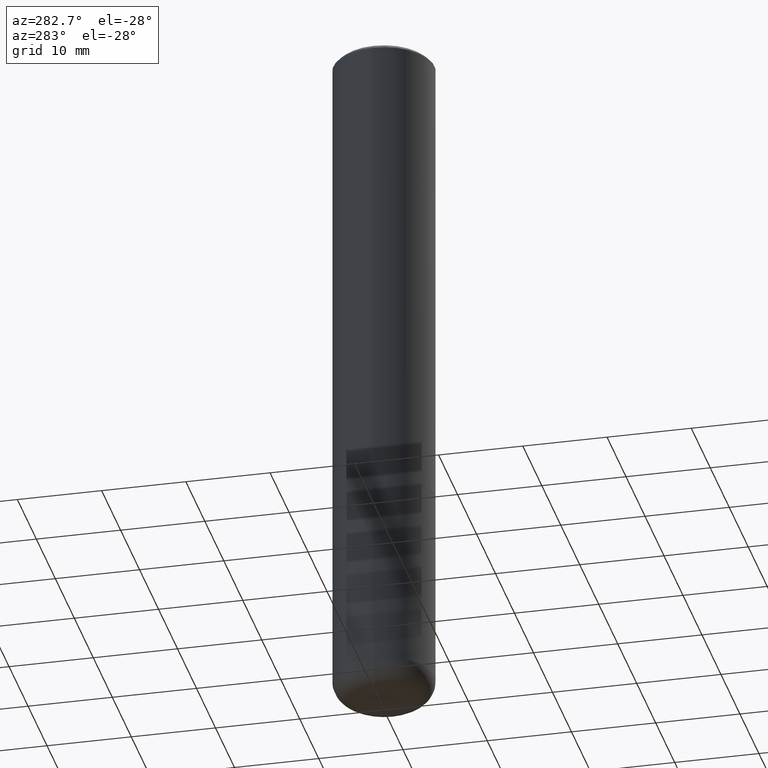
[diagram: clean part render]
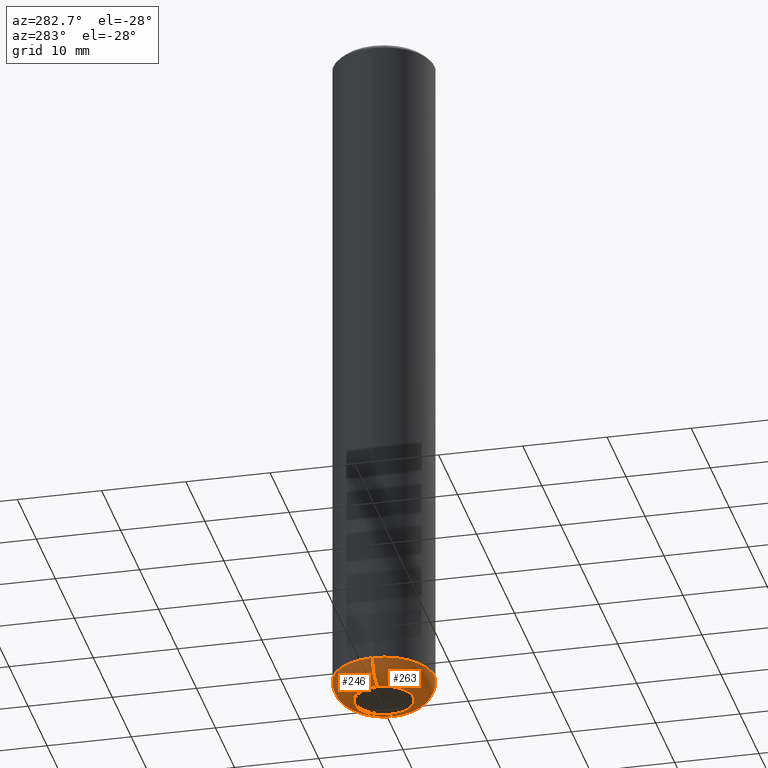
[diagram: same view with one multi-face feature highlighted, each face labeled with its STEP entity id]
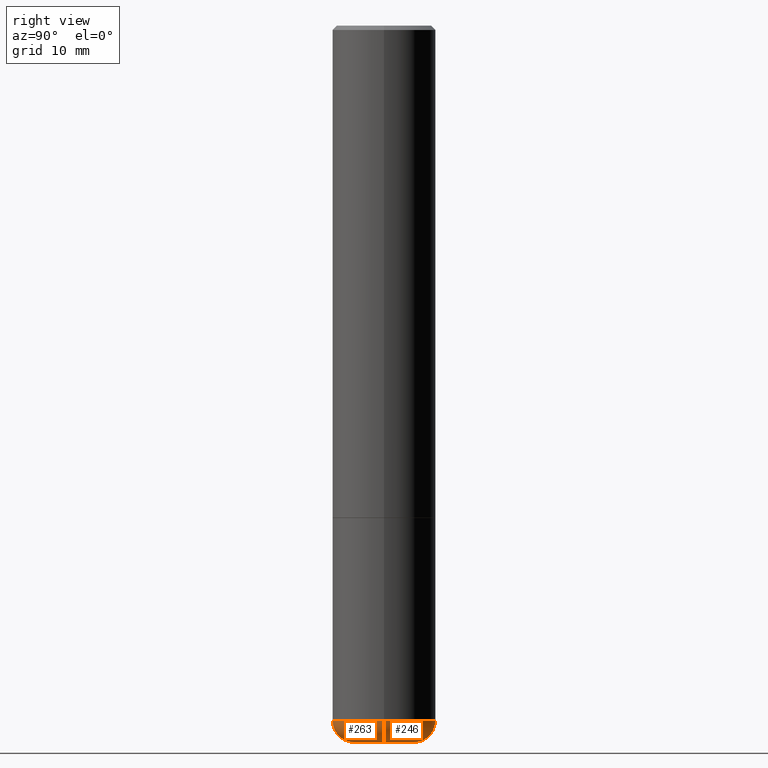
[diagram: same view with one multi-face feature highlighted, each face labeled with its STEP entity id]
A machine part, auxiliary view. The highlighted faces form ONE feature: a constant-radius fillet chain: 2 tangent blend faces with common blend radius 2.4994 mm. The faces share edges in the B-rep.
A second angle (right view) of the same feature is appended — it is thin or edge-on in the first view.
Their STEP definitions:
[1] entity #263 (Torus):
#5 = DIRECTION ( 'NONE',  ( -1.000000000000000000, 7.105427357601009747E-15, 0.000000000000000000 ) ) ;
#10 = AXIS2_PLACEMENT_3D ( 'NONE', #132, #353, #321 ) ;
#20 = VERTEX_POINT ( 'NONE', #84 ) ;
#41 = EDGE_CURVE ( 'NONE', #370, #20, #268, .T. ) ;
#42 = CARTESIAN_POINT ( 'NONE',  ( -0.1378000000000000058, -9.908617773195273284E-15, -3.267700000000000937 ) ) ;
#54 = CARTESIAN_POINT ( 'NONE',  ( 7.991058417971172834E-29, -1.140911357093774960E-14, -3.267700000000000937 ) ) ;
#62 = DIRECTION ( 'NONE',  ( 7.105427357601001859E-15, 1.000000000000000000, -3.491481338843145583E-15 ) ) ;
#71 = DIRECTION ( 'NONE',  ( 1.000000000000000000, -6.982962677686264344E-15, 0.000000000000000000 ) ) ;
#72 = AXIS2_PLACEMENT_3D ( 'NONE', #355, #300, #302 ) ;
#76 = VERTEX_POINT ( 'NONE', #99 ) ;
#84 = CARTESIAN_POINT ( 'NONE',  ( 0.1378000000000000058, -1.237136582792291707E-14, -3.267700000000000937 ) ) ;
#91 = CIRCLE ( 'NONE', #10, 0.09840000000000040381 ) ;
#95 = AXIS2_PLACEMENT_3D ( 'NONE', #54, #100, #113 ) ;
#99 = CARTESIAN_POINT ( 'NONE',  ( 0.2362000000000002153, -1.271492759166507844E-14, -3.169299999999999784 ) ) ;
#100 = DIRECTION ( 'NONE',  ( -2.445468806185136597E-29, 3.491481338843145583E-15, 1.000000000000000000 ) ) ;
#113 = DIRECTION ( 'NONE',  ( 1.000000000000000000, -6.982962677686265922E-15, 0.000000000000000000 ) ) ;
#132 = CARTESIAN_POINT ( 'NONE',  ( 0.1378000000000000058, -1.202780406418074782E-14, -3.169299999999999784 ) ) ;
#142 = FACE_OUTER_BOUND ( 'NONE', #245, .T. ) ;
#161 = TOROIDAL_SURFACE ( 'NONE', #72, 0.1378000000000000058, 0.09840000000000040381 ) ;
#185 = EDGE_CURVE ( 'NONE', #20, #76, #91, .T. ) ;
#187 = EDGE_CURVE ( 'NONE', #370, #248, #323, .T. ) ;
#208 = DIRECTION ( 'NONE',  ( -2.445468806185136597E-29, 3.491481338843145583E-15, 1.000000000000000000 ) ) ;
#241 = CARTESIAN_POINT ( 'NONE',  ( 7.750424287442554569E-29, -1.106555180719558034E-14, -3.169299999999999784 ) ) ;
#243 = ORIENTED_EDGE ( 'NONE', *, *, #187, .F. ) ;
#245 = EDGE_LOOP ( 'NONE', ( #243, #267, #305, #303 ) ) ;
#248 = VERTEX_POINT ( 'NONE', #329 ) ;
#253 = EDGE_CURVE ( 'NONE', #248, #76, #345, .T. ) ;
#260 = CARTESIAN_POINT ( 'NONE',  ( -0.1378000000000000058, -1.008642391731816283E-14, -3.169299999999999784 ) ) ;
#263 = ADVANCED_FACE ( 'NONE', ( #142 ), #161, .T. ) ;
#267 = ORIENTED_EDGE ( 'NONE', *, *, #41, .T. ) ;
#268 = CIRCLE ( 'NONE', #95, 0.1378000000000000058 ) ;
#300 = DIRECTION ( 'NONE',  ( -2.445468806185136597E-29, 3.491481338843145583E-15, 1.000000000000000000 ) ) ;
#302 = DIRECTION ( 'NONE',  ( 1.000000000000000000, -6.982962677686269077E-15, 4.883557194083113462E-29 ) ) ;
#303 = ORIENTED_EDGE ( 'NONE', *, *, #253, .F. ) ;
#305 = ORIENTED_EDGE ( 'NONE', *, *, #185, .T. ) ;
#321 = DIRECTION ( 'NONE',  ( 1.000000000000000000, -6.982962677686272233E-15, 0.000000000000000000 ) ) ;
#323 = CIRCLE ( 'NONE', #407, 0.09840000000000040381 ) ;
#329 = CARTESIAN_POINT ( 'NONE',  ( -0.2362000000000002153, -9.387249865330223945E-15, -3.169299999999999784 ) ) ;
#345 = CIRCLE ( 'NONE', #374, 0.2362000000000000210 ) ;
#353 = DIRECTION ( 'NONE',  ( -6.982962677686266711E-15, -1.000000000000000000, 3.491481338843145583E-15 ) ) ;
#355 = CARTESIAN_POINT ( 'NONE',  ( 7.750424287442554569E-29, -1.106555180719558034E-14, -3.169299999999999784 ) ) ;
#370 = VERTEX_POINT ( 'NONE', #42 ) ;
#374 = AXIS2_PLACEMENT_3D ( 'NONE', #241, #208, #71 ) ;
#407 = AXIS2_PLACEMENT_3D ( 'NONE', #260, #62, #5 ) ;
[2] entity #246 (Torus):
#5 = DIRECTION ( 'NONE',  ( -1.000000000000000000, 7.105427357601009747E-15, 0.000000000000000000 ) ) ;
#6 = EDGE_CURVE ( 'NONE', #20, #370, #293, .T. ) ;
#10 = AXIS2_PLACEMENT_3D ( 'NONE', #132, #353, #321 ) ;
#20 = VERTEX_POINT ( 'NONE', #84 ) ;
#24 = DIRECTION ( 'NONE',  ( -2.445468806185136597E-29, 3.491481338843145583E-15, 1.000000000000000000 ) ) ;
#34 = EDGE_CURVE ( 'NONE', #76, #248, #207, .T. ) ;
#42 = CARTESIAN_POINT ( 'NONE',  ( -0.1378000000000000058, -9.908617773195273284E-15, -3.267700000000000937 ) ) ;
#43 = ORIENTED_EDGE ( 'NONE', *, *, #34, .F. ) ;
#57 = AXIS2_PLACEMENT_3D ( 'NONE', #210, #114, #202 ) ;
#62 = DIRECTION ( 'NONE',  ( 7.105427357601001859E-15, 1.000000000000000000, -3.491481338843145583E-15 ) ) ;
#76 = VERTEX_POINT ( 'NONE', #99 ) ;
#84 = CARTESIAN_POINT ( 'NONE',  ( 0.1378000000000000058, -1.237136582792291707E-14, -3.267700000000000937 ) ) ;
#91 = CIRCLE ( 'NONE', #10, 0.09840000000000040381 ) ;
#99 = CARTESIAN_POINT ( 'NONE',  ( 0.2362000000000002153, -1.271492759166507844E-14, -3.169299999999999784 ) ) ;
#109 = DIRECTION ( 'NONE',  ( 1.000000000000000000, -6.982962677686264344E-15, 0.000000000000000000 ) ) ;
#114 = DIRECTION ( 'NONE',  ( -2.445468806185136597E-29, 3.491481338843145583E-15, 1.000000000000000000 ) ) ;
#115 = CARTESIAN_POINT ( 'NONE',  ( 7.991058417971172834E-29, -1.140911357093774960E-14, -3.267700000000000937 ) ) ;
#132 = CARTESIAN_POINT ( 'NONE',  ( 0.1378000000000000058, -1.202780406418074782E-14, -3.169299999999999784 ) ) ;
#143 = ORIENTED_EDGE ( 'NONE', *, *, #6, .T. ) ;
#156 = AXIS2_PLACEMENT_3D ( 'NONE', #115, #217, #342 ) ;
#180 = EDGE_LOOP ( 'NONE', ( #143, #389, #43, #341 ) ) ;
#182 = CARTESIAN_POINT ( 'NONE',  ( 7.750424287442554569E-29, -1.106555180719558034E-14, -3.169299999999999784 ) ) ;
#185 = EDGE_CURVE ( 'NONE', #20, #76, #91, .T. ) ;
#187 = EDGE_CURVE ( 'NONE', #370, #248, #323, .T. ) ;
#202 = DIRECTION ( 'NONE',  ( 1.000000000000000000, -6.982962677686269077E-15, 4.883557194083113462E-29 ) ) ;
#207 = CIRCLE ( 'NONE', #221, 0.2362000000000000210 ) ;
#210 = CARTESIAN_POINT ( 'NONE',  ( 7.750424287442554569E-29, -1.106555180719558034E-14, -3.169299999999999784 ) ) ;
#217 = DIRECTION ( 'NONE',  ( -2.445468806185136597E-29, 3.491481338843145583E-15, 1.000000000000000000 ) ) ;
#221 = AXIS2_PLACEMENT_3D ( 'NONE', #182, #24, #109 ) ;
#240 = TOROIDAL_SURFACE ( 'NONE', #57, 0.1378000000000000058, 0.09840000000000040381 ) ;
#246 = ADVANCED_FACE ( 'NONE', ( #327 ), #240, .T. ) ;
#248 = VERTEX_POINT ( 'NONE', #329 ) ;
#260 = CARTESIAN_POINT ( 'NONE',  ( -0.1378000000000000058, -1.008642391731816283E-14, -3.169299999999999784 ) ) ;
#293 = CIRCLE ( 'NONE', #156, 0.1378000000000000058 ) ;
#321 = DIRECTION ( 'NONE',  ( 1.000000000000000000, -6.982962677686272233E-15, 0.000000000000000000 ) ) ;
#323 = CIRCLE ( 'NONE', #407, 0.09840000000000040381 ) ;
#327 = FACE_OUTER_BOUND ( 'NONE', #180, .T. ) ;
#329 = CARTESIAN_POINT ( 'NONE',  ( -0.2362000000000002153, -9.387249865330223945E-15, -3.169299999999999784 ) ) ;
#341 = ORIENTED_EDGE ( 'NONE', *, *, #185, .F. ) ;
#342 = DIRECTION ( 'NONE',  ( 1.000000000000000000, -6.982962677686265922E-15, 0.000000000000000000 ) ) ;
#353 = DIRECTION ( 'NONE',  ( -6.982962677686266711E-15, -1.000000000000000000, 3.491481338843145583E-15 ) ) ;
#370 = VERTEX_POINT ( 'NONE', #42 ) ;
#389 = ORIENTED_EDGE ( 'NONE', *, *, #187, .T. ) ;
#407 = AXIS2_PLACEMENT_3D ( 'NONE', #260, #62, #5 ) ;